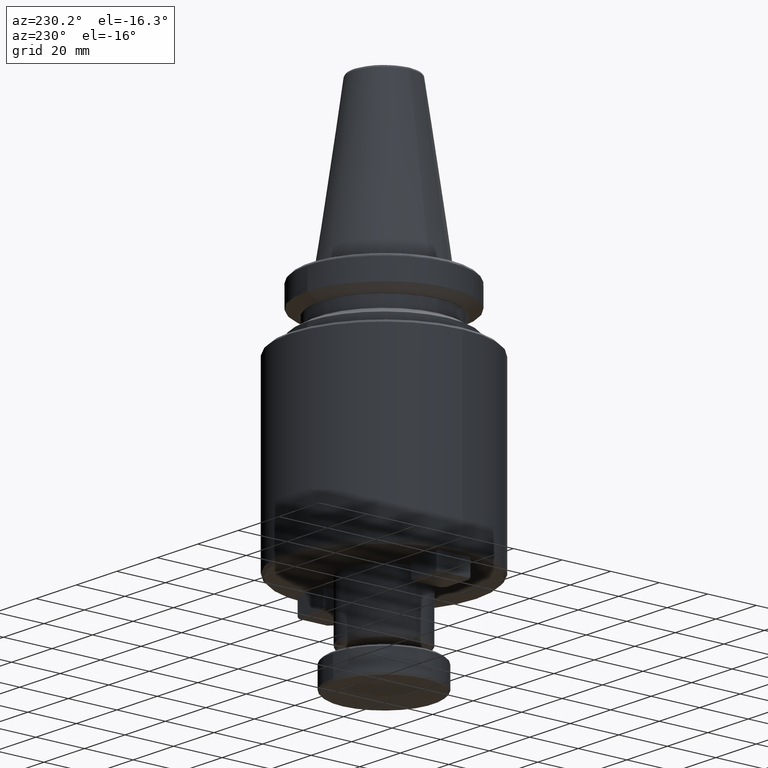
[diagram: clean part render]
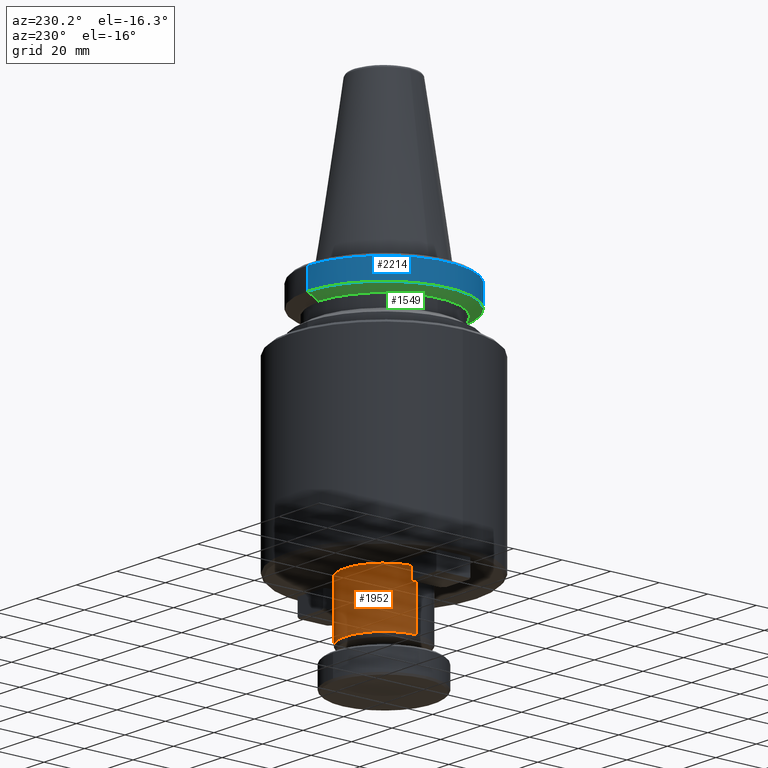
[diagram: same view with three faces highlighted in distinct colors, each labeled with its STEP entity id]
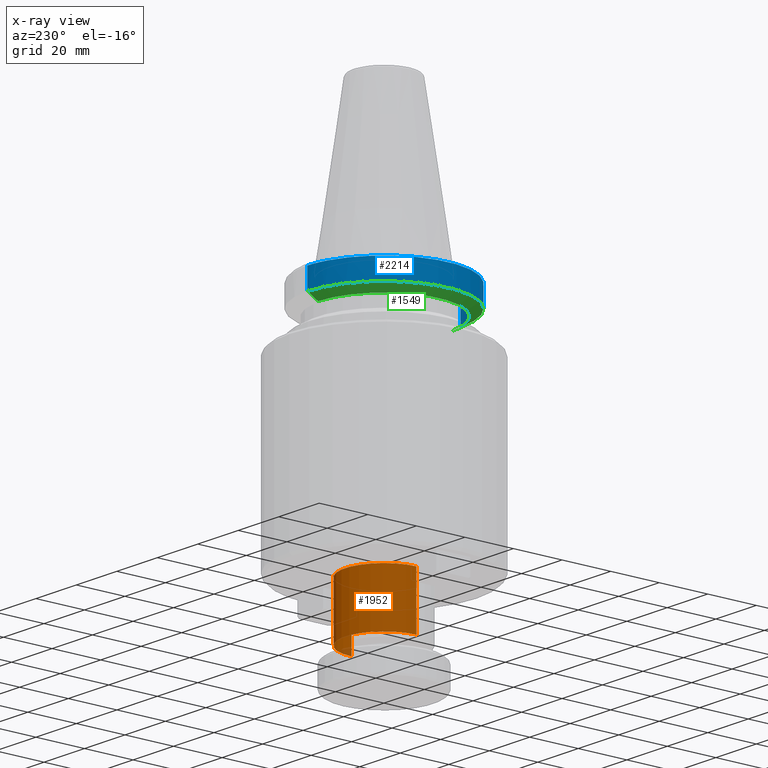
[diagram: x-ray of the same camera — body ghosted, the three highlighted faces saturated]
A machine part, auxiliary view with three faces highlighted in distinct colors.
The next image is the same camera in x-ray (body ghosted, the three faces saturated) — at least one of them is partly hidden behind the body in this view.
Their STEP definitions:

[orange] entity #1952 — the highlighted cylindrical surface (partial cylindrical patch) has radius 16 mm, axis along (0, -0, 1).
#8 = ORIENTED_EDGE ( 'NONE', *, *, #1919, .T. ) ;
#14 = ORIENTED_EDGE ( 'NONE', *, *, #1979, .F. ) ;
#24 = ORIENTED_EDGE ( 'NONE', *, *, #1903, .T. ) ;
#188 = AXIS2_PLACEMENT_3D ( 'NONE', #1025, #1032, #1015 ) ;
#406 = CARTESIAN_POINT ( 'NONE',  ( 16.00000000000000000, 0.0000000000000000000, -122.5277568140000000 ) ) ;
#511 = DIRECTION ( 'NONE',  ( 0.0000000000000000000, -0.0000000000000000000, 1.000000000000000000 ) ) ;
#518 = CARTESIAN_POINT ( 'NONE',  ( 16.00000000000000000, 0.0000000000000000000, -122.5277568140000000 ) ) ;
#863 = EDGE_LOOP ( 'NONE', ( #24, #8, #993, #14 ) ) ;
#906 = VERTEX_POINT ( 'NONE', #406 ) ;
#952 = DIRECTION ( 'NONE',  ( 1.000000000000000000, 0.0000000000000000000, 0.0000000000000000000 ) ) ;
#993 = ORIENTED_EDGE ( 'NONE', *, *, #1934, .F. ) ;
#1015 = DIRECTION ( 'NONE',  ( 1.000000000000000000, 0.0000000000000000000, 0.0000000000000000000 ) ) ;
#1025 = CARTESIAN_POINT ( 'NONE',  ( 0.0000000000000000000, 0.0000000000000000000, -100.0000000000000100 ) ) ;
#1032 = DIRECTION ( 'NONE',  ( 0.0000000000000000000, -0.0000000000000000000, 1.000000000000000000 ) ) ;
#1034 = DIRECTION ( 'NONE',  ( 0.0000000000000000000, -0.0000000000000000000, 1.000000000000000000 ) ) ;
#1062 = CARTESIAN_POINT ( 'NONE',  ( 16.00000000000000000, 0.0000000000000000000, -100.0000000000000100 ) ) ;
#1079 = CARTESIAN_POINT ( 'NONE',  ( 0.0000000000000000000, 0.0000000000000000000, -122.5277568140000000 ) ) ;
#1082 = DIRECTION ( 'NONE',  ( 1.000000000000000000, 0.0000000000000000000, -1.734723475976807100E-015 ) ) ;
#1134 = DIRECTION ( 'NONE',  ( 0.0000000000000000000, 0.0000000000000000000, 1.000000000000000000 ) ) ;
#1154 = CARTESIAN_POINT ( 'NONE',  ( 0.0000000000000000000, 0.0000000000000000000, -122.5277568139999700 ) ) ;
#1160 = DIRECTION ( 'NONE',  ( 0.0000000000000000000, -0.0000000000000000000, 1.000000000000000000 ) ) ;
#1180 = CARTESIAN_POINT ( 'NONE',  ( -16.00000000000000000, 1.959434878635765100E-015, -122.5277568140000000 ) ) ;
#1310 = VERTEX_POINT ( 'NONE', #1062 ) ;
#1903 = EDGE_CURVE ( 'NONE', #906, #2364, #2048, .T. ) ;
#1919 = EDGE_CURVE ( 'NONE', #2364, #2832, #2012, .T. ) ;
#1934 = EDGE_CURVE ( 'NONE', #1310, #2832, #2015, .T. ) ;
#1944 = AXIS2_PLACEMENT_3D ( 'NONE', #1079, #1034, #952 ) ;
#1952 = ADVANCED_FACE ( 'NONE', ( #1975 ), #1961, .T. ) ;
#1955 = VECTOR ( 'NONE', #511, 1000.000000000000000 ) ;
#1961 = CYLINDRICAL_SURFACE ( 'NONE', #1944, 16.00000000000000000 ) ;
#1975 = FACE_OUTER_BOUND ( 'NONE', #863, .T. ) ;
#1979 = EDGE_CURVE ( 'NONE', #906, #1310, #2001, .T. ) ;
#2001 = LINE ( 'NONE', #518, #1955 ) ;
#2002 = VECTOR ( 'NONE', #1160, 1000.000000000000000 ) ;
#2012 = LINE ( 'NONE', #1180, #2002 ) ;
#2015 = CIRCLE ( 'NONE', #188, 16.00000000000000000 ) ;
#2048 = CIRCLE ( 'NONE', #2817, 16.00000000000000000 ) ;
#2212 = CARTESIAN_POINT ( 'NONE',  ( -16.00000000000000000, 1.959434878635765100E-015, -100.0000000000000100 ) ) ;
#2364 = VERTEX_POINT ( 'NONE', #2534 ) ;
#2534 = CARTESIAN_POINT ( 'NONE',  ( -16.00000000000000000, 1.959434878635765100E-015, -122.5277568139999700 ) ) ;
#2817 = AXIS2_PLACEMENT_3D ( 'NONE', #1154, #1134, #1082 ) ;
#2832 = VERTEX_POINT ( 'NONE', #2212 ) ;

[blue] entity #2214 — the highlighted cylindrical surface (partial cylindrical patch) has radius 31.5 mm, axis along (0, -0, 1).
#69 = VERTEX_POINT ( 'NONE', #1181 ) ;
#194 = VERTEX_POINT ( 'NONE', #1679 ) ;
#285 = EDGE_LOOP ( 'NONE', ( #1208, #1442, #1455, #1485, #1513, #1551 ) ) ;
#386 = CARTESIAN_POINT ( 'NONE',  ( 0.0000000000000000000, -31.50000000000002800, -11.59985799399998500 ) ) ;
#468 = EDGE_CURVE ( 'NONE', #69, #3026, #1403, .T. ) ;
#486 = EDGE_CURVE ( 'NONE', #1786, #194, #1396, .T. ) ;
#499 = VERTEX_POINT ( 'NONE', #2814 ) ;
#564 = EDGE_CURVE ( 'NONE', #69, #2206, #1427, .T. ) ;
#576 = EDGE_CURVE ( 'NONE', #3026, #499, #1435, .T. ) ;
#634 = EDGE_CURVE ( 'NONE', #499, #194, #1492, .T. ) ;
#1012 = AXIS2_PLACEMENT_3D ( 'NONE', #2597, #2604, #2605 ) ;
#1030 = AXIS2_PLACEMENT_3D ( 'NONE', #2562, #2565, #2566 ) ;
#1181 = CARTESIAN_POINT ( 'NONE',  ( 3.857637417314165800E-015, 31.50000000000002800, -11.59985799399998500 ) ) ;
#1208 = ORIENTED_EDGE ( 'NONE', *, *, #564, .F. ) ;
#1396 = CIRCLE ( 'NONE', #1012, 31.50000000000000000 ) ;
#1403 = CIRCLE ( 'NONE', #1030, 31.50000000000000000 ) ;
#1427 = LINE ( 'NONE', #2059, #1482 ) ;
#1435 = LINE ( 'NONE', #2077, #1460 ) ;
#1442 = ORIENTED_EDGE ( 'NONE', *, *, #468, .T. ) ;
#1455 = ORIENTED_EDGE ( 'NONE', *, *, #576, .T. ) ;
#1460 = VECTOR ( 'NONE', #2156, 1000.000000000000000 ) ;
#1482 = VECTOR ( 'NONE', #2065, 1000.000000000000000 ) ;
#1485 = ORIENTED_EDGE ( 'NONE', *, *, #634, .T. ) ;
#1492 = CIRCLE ( 'NONE', #2831, 31.50000000000000000 ) ;
#1513 = ORIENTED_EDGE ( 'NONE', *, *, #486, .F. ) ;
#1551 = ORIENTED_EDGE ( 'NONE', *, *, #2412, .T. ) ;
#1636 = CIRCLE ( 'NONE', #2659, 31.50000000000000000 ) ;
#1679 = CARTESIAN_POINT ( 'NONE',  ( -8.717453372924149200, -30.26972095495584700, -3.165685425000008800 ) ) ;
#1778 = CYLINDRICAL_SURFACE ( 'NONE', #1965, 31.50000000000000000 ) ;
#1786 = VERTEX_POINT ( 'NONE', #2139 ) ;
#1795 = FACE_OUTER_BOUND ( 'NONE', #285, .T. ) ;
#1965 = AXIS2_PLACEMENT_3D ( 'NONE', #2865, #2843, #2850 ) ;
#2059 = CARTESIAN_POINT ( 'NONE',  ( 3.857637417314162700E-015, 31.50000000000000000, -11.59985799400000100 ) ) ;
#2065 = DIRECTION ( 'NONE',  ( 0.0000000000000000000, -2.753529326947312600E-017, 1.000000000000000000 ) ) ;
#2077 = CARTESIAN_POINT ( 'NONE',  ( 0.0000000000000000000, -31.50000000000000000, -11.59985799400000100 ) ) ;
#2139 = CARTESIAN_POINT ( 'NONE',  ( -8.717453372924143900, 30.26972095495585100, -3.165685425000008800 ) ) ;
#2156 = DIRECTION ( 'NONE',  ( 0.0000000000000000000, -2.753529326947312600E-017, 1.000000000000000000 ) ) ;
#2165 = CARTESIAN_POINT ( 'NONE',  ( 3.857637417314162700E-015, 31.50000000000000000, -3.165685425000008800 ) ) ;
#2206 = VERTEX_POINT ( 'NONE', #2165 ) ;
#2214 = ADVANCED_FACE ( 'NONE', ( #1795 ), #1778, .T. ) ;
#2412 = EDGE_CURVE ( 'NONE', #1786, #2206, #1636, .T. ) ;
#2428 = DIRECTION ( 'NONE',  ( -1.000000000000000000, 0.0000000000000000000, 0.0000000000000000000 ) ) ;
#2430 = DIRECTION ( 'NONE',  ( -0.0000000000000000000, -0.0000000000000000000, -1.000000000000000000 ) ) ;
#2432 = CARTESIAN_POINT ( 'NONE',  ( 0.0000000000000000000, 0.0000000000000000000, -3.165685425000008800 ) ) ;
#2478 = DIRECTION ( 'NONE',  ( -1.000000000000000000, 0.0000000000000000000, 0.0000000000000000000 ) ) ;
#2512 = DIRECTION ( 'NONE',  ( -0.0000000000000000000, -0.0000000000000000000, -1.000000000000000000 ) ) ;
#2520 = CARTESIAN_POINT ( 'NONE',  ( 0.0000000000000000000, 0.0000000000000000000, -3.165685425000008800 ) ) ;
#2562 = CARTESIAN_POINT ( 'NONE',  ( 0.0000000000000000000, 0.0000000000000000000, -11.59985799399998500 ) ) ;
#2565 = DIRECTION ( 'NONE',  ( 0.0000000000000000000, 0.0000000000000000000, 1.000000000000000000 ) ) ;
#2566 = DIRECTION ( 'NONE',  ( 1.000000000000000000, 0.0000000000000000000, -4.956352788505163300E-016 ) ) ;
#2597 = CARTESIAN_POINT ( 'NONE',  ( 0.0000000000000000000, 0.0000000000000000000, -3.165685424999995100 ) ) ;
#2604 = DIRECTION ( 'NONE',  ( 0.0000000000000000000, 0.0000000000000000000, 1.000000000000000000 ) ) ;
#2605 = DIRECTION ( 'NONE',  ( 1.000000000000000000, 0.0000000000000000000, -1.514441129821022100E-016 ) ) ;
#2659 = AXIS2_PLACEMENT_3D ( 'NONE', #2432, #2430, #2428 ) ;
#2814 = CARTESIAN_POINT ( 'NONE',  ( 0.0000000000000000000, -31.50000000000000000, -3.165685425000008800 ) ) ;
#2831 = AXIS2_PLACEMENT_3D ( 'NONE', #2520, #2512, #2478 ) ;
#2843 = DIRECTION ( 'NONE',  ( 0.0000000000000000000, -2.753529326947312600E-017, 1.000000000000000000 ) ) ;
#2850 = DIRECTION ( 'NONE',  ( 0.0000000000000000000, -1.000000000000000000, 0.0000000000000000000 ) ) ;
#2865 = CARTESIAN_POINT ( 'NONE',  ( 0.0000000000000000000, 0.0000000000000000000, -11.59985799400000100 ) ) ;
#3026 = VERTEX_POINT ( 'NONE', #386 ) ;

[green] entity #1549 — the highlighted conical surface has half-angle 60 deg.
#69 = VERTEX_POINT ( 'NONE', #1181 ) ;
#317 = EDGE_LOOP ( 'NONE', ( #1101, #1141, #1167, #1200 ) ) ;
#386 = CARTESIAN_POINT ( 'NONE',  ( 0.0000000000000000000, -31.50000000000002800, -11.59985799399998500 ) ) ;
#464 = EDGE_CURVE ( 'NONE', #2096, #608, #1699, .T. ) ;
#468 = EDGE_CURVE ( 'NONE', #69, #3026, #1403, .T. ) ;
#592 = EDGE_CURVE ( 'NONE', #608, #69, #1466, .T. ) ;
#606 = EDGE_CURVE ( 'NONE', #2096, #3026, #1464, .T. ) ;
#608 = VERTEX_POINT ( 'NONE', #2292 ) ;
#614 = VECTOR ( 'NONE', #2305, 1000.000000000000100 ) ;
#618 = VECTOR ( 'NONE', #2227, 1000.000000000000100 ) ;
#650 = DIRECTION ( 'NONE',  ( 0.0000000000000000000, -1.000000000000000000, -6.384789436983058400E-017 ) ) ;
#660 = CARTESIAN_POINT ( 'NONE',  ( 0.0000000000000000000, 0.0000000000000000000, -14.10000000000000000 ) ) ;
#664 = DIRECTION ( 'NONE',  ( 0.0000000000000000000, -3.192394718491529200E-017, 1.000000000000000000 ) ) ;
#669 = CARTESIAN_POINT ( 'NONE',  ( 0.0000000000000000000, -27.16962701900000000, -14.10000000000000100 ) ) ;
#1030 = AXIS2_PLACEMENT_3D ( 'NONE', #2562, #2565, #2566 ) ;
#1045 = AXIS2_PLACEMENT_3D ( 'NONE', #2545, #2549, #2555 ) ;
#1101 = ORIENTED_EDGE ( 'NONE', *, *, #592, .F. ) ;
#1141 = ORIENTED_EDGE ( 'NONE', *, *, #464, .F. ) ;
#1167 = ORIENTED_EDGE ( 'NONE', *, *, #606, .T. ) ;
#1181 = CARTESIAN_POINT ( 'NONE',  ( 3.857637417314165800E-015, 31.50000000000002800, -11.59985799399998500 ) ) ;
#1200 = ORIENTED_EDGE ( 'NONE', *, *, #468, .F. ) ;
#1403 = CIRCLE ( 'NONE', #1030, 31.50000000000000000 ) ;
#1464 = LINE ( 'NONE', #669, #614 ) ;
#1466 = LINE ( 'NONE', #2254, #618 ) ;
#1549 = ADVANCED_FACE ( 'NONE', ( #2310 ), #2276, .T. ) ;
#1699 = CIRCLE ( 'NONE', #1045, 27.16962701900000400 ) ;
#2096 = VERTEX_POINT ( 'NONE', #2994 ) ;
#2227 = DIRECTION ( 'NONE',  ( 1.060575238753735000E-016, 0.8660254038079786600, 0.4999999999592274500 ) ) ;
#2254 = CARTESIAN_POINT ( 'NONE',  ( 3.327319676284579400E-015, 27.16962701900000000, -14.09999999999999800 ) ) ;
#2276 = CONICAL_SURFACE ( 'NONE', #2995, 27.16962701900000000, 1.047197551243677700 ) ;
#2292 = CARTESIAN_POINT ( 'NONE',  ( 3.592478546799373400E-015, 27.16962701900000400, -14.09999999999999600 ) ) ;
#2305 = DIRECTION ( 'NONE',  ( 0.0000000000000000000, -0.8660254038079786600, 0.4999999999592274500 ) ) ;
#2310 = FACE_OUTER_BOUND ( 'NONE', #317, .T. ) ;
#2545 = CARTESIAN_POINT ( 'NONE',  ( 0.0000000000000000000, -6.394641586666369800E-032, -14.09999999999999800 ) ) ;
#2549 = DIRECTION ( 'NONE',  ( -0.0000000000000000000, 3.192394718491529200E-017, -1.000000000000000000 ) ) ;
#2555 = DIRECTION ( 'NONE',  ( 0.0000000000000000000, -1.000000000000000000, -6.384789436983058400E-017 ) ) ;
#2562 = CARTESIAN_POINT ( 'NONE',  ( 0.0000000000000000000, 0.0000000000000000000, -11.59985799399998500 ) ) ;
#2565 = DIRECTION ( 'NONE',  ( 0.0000000000000000000, 0.0000000000000000000, 1.000000000000000000 ) ) ;
#2566 = DIRECTION ( 'NONE',  ( 1.000000000000000000, 0.0000000000000000000, -4.956352788505163300E-016 ) ) ;
#2994 = CARTESIAN_POINT ( 'NONE',  ( 0.0000000000000000000, -27.16962701900000400, -14.10000000000000000 ) ) ;
#2995 = AXIS2_PLACEMENT_3D ( 'NONE', #660, #664, #650 ) ;
#3026 = VERTEX_POINT ( 'NONE', #386 ) ;